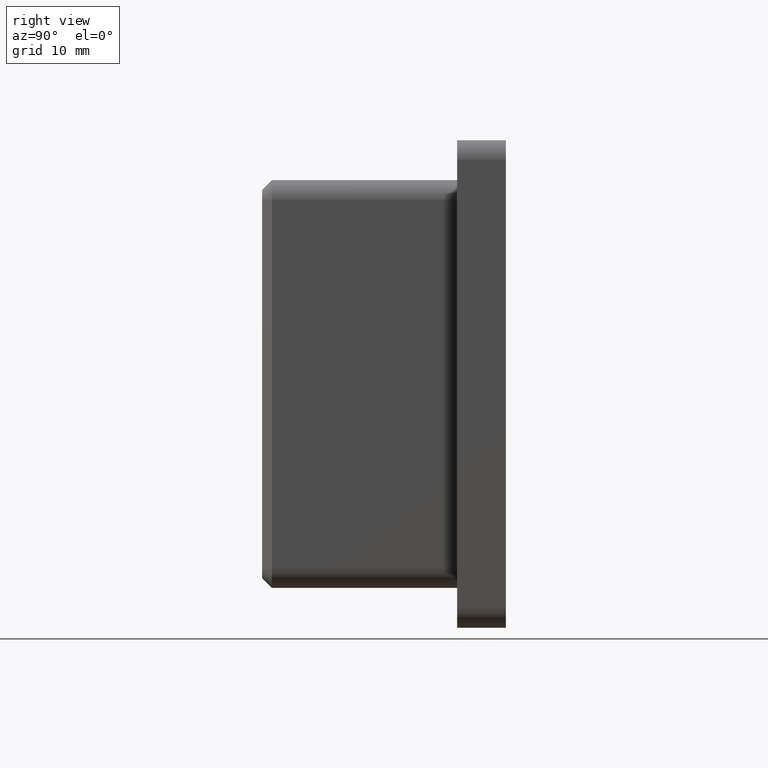
[diagram: clean part render]
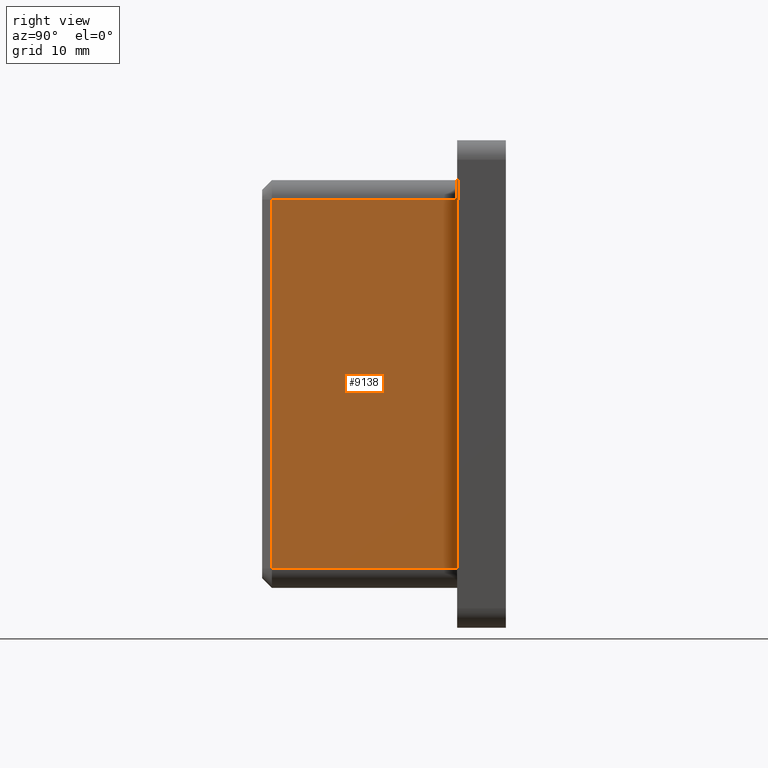
[diagram: same view with one face highlighted and labeled with its STEP entity id]
A machine part, right view. The second image highlights one B-rep face of the part: STEP entity #9138.
In plain terms, the highlighted planar face has unit normal (-1, 0, -0).
Its self-contained STEP definition (entity closure, byte-faithful):
#662 = EDGE_CURVE ( 'NONE', #1472, #5338, #11819, .T. ) ;
#744 = CARTESIAN_POINT ( 'NONE',  ( 20.89999999999998800, -20.00000000000000000, -18.89999999999998800 ) ) ;
#1472 = VERTEX_POINT ( 'NONE', #17594 ) ;
#2042 = VECTOR ( 'NONE', #13174, 1000.000000000000000 ) ;
#2309 = EDGE_LOOP ( 'NONE', ( #11575, #9555, #18229, #15962 ) ) ;
#2948 = FACE_OUTER_BOUND ( 'NONE', #2309, .T. ) ;
#3047 = VECTOR ( 'NONE', #5973, 1000.000000000000000 ) ;
#3934 = PLANE ( 'NONE',  #10526 ) ;
#4195 = CARTESIAN_POINT ( 'NONE',  ( 20.89999999999998800, 0.0000000000000000000, -18.89999999999997400 ) ) ;
#4836 = LINE ( 'NONE', #12864, #3047 ) ;
#5338 = VERTEX_POINT ( 'NONE', #16755 ) ;
#5973 = DIRECTION ( 'NONE',  ( -0.0000000000000000000, -1.000000000000000000, -0.0000000000000000000 ) ) ;
#7280 = DIRECTION ( 'NONE',  ( -0.0000000000000000000, -0.0000000000000000000, 1.000000000000000000 ) ) ;
#9138 = ADVANCED_FACE ( 'NONE', ( #2948 ), #3934, .F. ) ;
#9414 = VERTEX_POINT ( 'NONE', #15279 ) ;
#9555 = ORIENTED_EDGE ( 'NONE', *, *, #662, .T. ) ;
#9740 = VECTOR ( 'NONE', #10693, 1000.000000000000000 ) ;
#10122 = VECTOR ( 'NONE', #7280, 1000.000000000000000 ) ;
#10526 = AXIS2_PLACEMENT_3D ( 'NONE', #12411, #16694, #18116 ) ;
#10693 = DIRECTION ( 'NONE',  ( 0.0000000000000000000, 1.000000000000000000, 0.0000000000000000000 ) ) ;
#11575 = ORIENTED_EDGE ( 'NONE', *, *, #15566, .T. ) ;
#11819 = LINE ( 'NONE', #14434, #2042 ) ;
#12411 = CARTESIAN_POINT ( 'NONE',  ( 20.89999999999998800, -20.00000000000000000, 20.89999999999998800 ) ) ;
#12864 = CARTESIAN_POINT ( 'NONE',  ( 20.89999999999998800, -20.00000000000000000, 18.89999999999998800 ) ) ;
#13174 = DIRECTION ( 'NONE',  ( 0.0000000000000000000, 0.0000000000000000000, -1.000000000000000000 ) ) ;
#14418 = LINE ( 'NONE', #744, #9740 ) ;
#14434 = CARTESIAN_POINT ( 'NONE',  ( 20.89999999999998800, -18.99999999999999300, -18.89999999999997400 ) ) ;
#14665 = EDGE_CURVE ( 'NONE', #5338, #15556, #14418, .T. ) ;
#15279 = CARTESIAN_POINT ( 'NONE',  ( 20.89999999999998800, 0.0000000000000000000, 18.89999999999998800 ) ) ;
#15556 = VERTEX_POINT ( 'NONE', #4195 ) ;
#15566 = EDGE_CURVE ( 'NONE', #9414, #1472, #4836, .T. ) ;
#15567 = CARTESIAN_POINT ( 'NONE',  ( 20.89999999999998800, 0.0000000000000000000, 20.89999999999998800 ) ) ;
#15962 = ORIENTED_EDGE ( 'NONE', *, *, #17848, .T. ) ;
#16387 = LINE ( 'NONE', #15567, #10122 ) ;
#16694 = DIRECTION ( 'NONE',  ( -1.000000000000000000, 0.0000000000000000000, -0.0000000000000000000 ) ) ;
#16755 = CARTESIAN_POINT ( 'NONE',  ( 20.89999999999998800, -18.99999999999999300, -18.89999999999998800 ) ) ;
#17594 = CARTESIAN_POINT ( 'NONE',  ( 20.89999999999998800, -18.99999999999999300, 18.89999999999998800 ) ) ;
#17848 = EDGE_CURVE ( 'NONE', #15556, #9414, #16387, .T. ) ;
#18116 = DIRECTION ( 'NONE',  ( -0.0000000000000000000, 0.0000000000000000000, 1.000000000000000000 ) ) ;
#18229 = ORIENTED_EDGE ( 'NONE', *, *, #14665, .T. ) ;